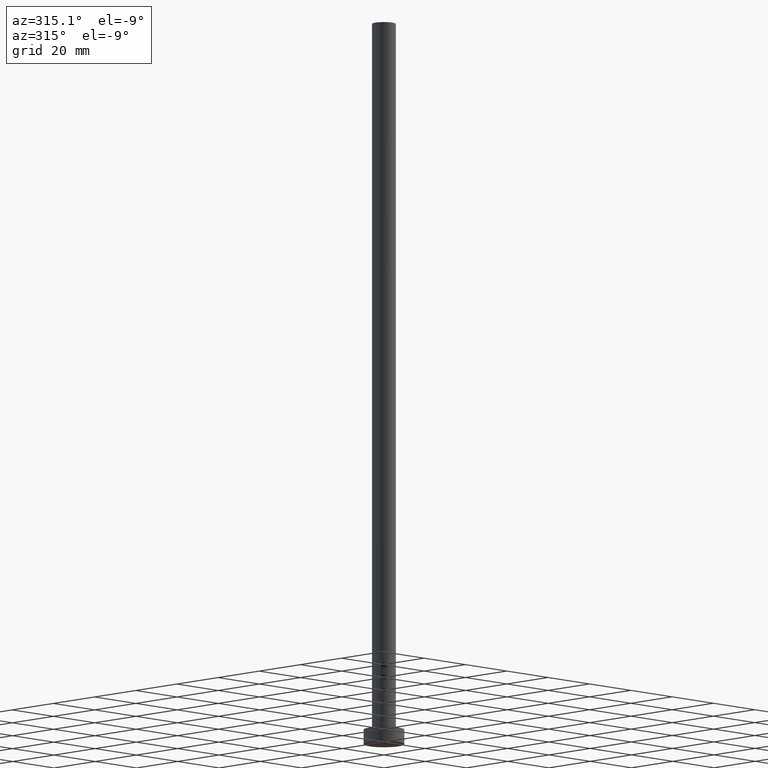
[diagram: clean part render]
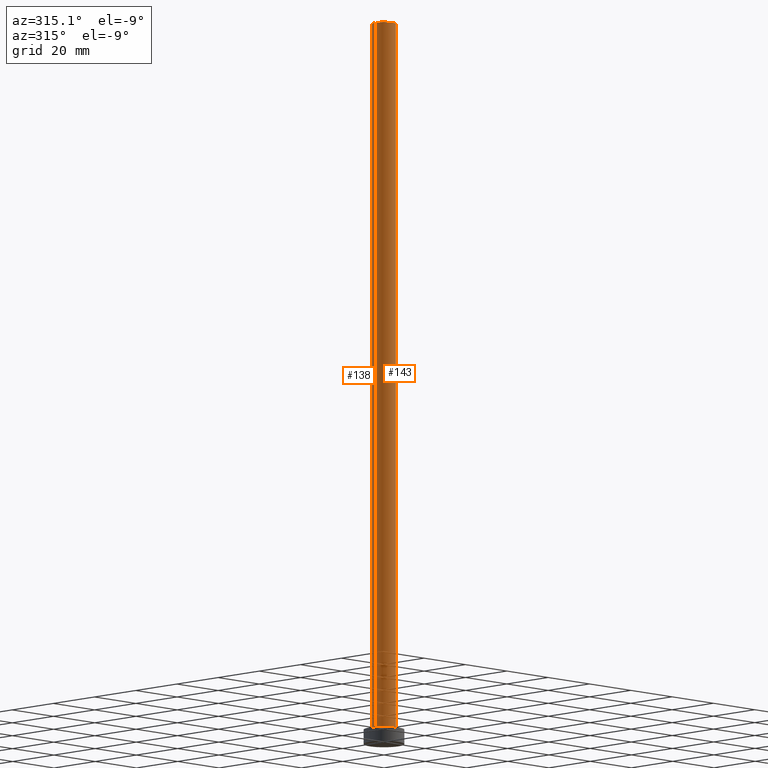
[diagram: same view with one multi-face feature highlighted, each face labeled with its STEP entity id]
A machine part, auxiliary view. The highlighted faces form ONE feature: a constant-radius fillet chain: 2 tangent blend faces with common blend radius 4.1 mm. The faces share edges in the B-rep.
Their STEP definitions:
[1] entity #143 (Cylinder):
#6 = CARTESIAN_POINT ( 'NONE',  ( 0.000000000000000000, 0.000000000000000000, 250.0000000000000000 ) ) ;
#7 = CIRCLE ( 'NONE', #72, 4.099999999999999645 ) ;
#16 = CYLINDRICAL_SURFACE ( 'NONE', #42, 4.099999999999999645 ) ;
#18 = CARTESIAN_POINT ( 'NONE',  ( -4.099999999999999645, 0.000000000000000000, 5.000000000000000000 ) ) ;
#19 = DIRECTION ( 'NONE',  ( 0.000000000000000000, 0.000000000000000000, 1.000000000000000000 ) ) ;
#24 = DIRECTION ( 'NONE',  ( 1.000000000000000000, 0.000000000000000000, 0.000000000000000000 ) ) ;
#27 = EDGE_CURVE ( 'NONE', #234, #160, #115, .T. ) ;
#36 = VERTEX_POINT ( 'NONE', #98 ) ;
#42 = AXIS2_PLACEMENT_3D ( 'NONE', #147, #87, #166 ) ;
#55 = CARTESIAN_POINT ( 'NONE',  ( -4.099999999999999645, 0.000000000000000000, 250.0000000000000000 ) ) ;
#67 = FACE_OUTER_BOUND ( 'NONE', #248, .T. ) ;
#72 = AXIS2_PLACEMENT_3D ( 'NONE', #6, #238, #24 ) ;
#75 = ORIENTED_EDGE ( 'NONE', *, *, #164, .T. ) ;
#77 = ORIENTED_EDGE ( 'NONE', *, *, #112, .F. ) ;
#82 = CARTESIAN_POINT ( 'NONE',  ( -4.099999999999999645, 0.000000000000000000, 250.0000000000000000 ) ) ;
#87 = DIRECTION ( 'NONE',  ( -0.000000000000000000, -0.000000000000000000, -1.000000000000000000 ) ) ;
#91 = LINE ( 'NONE', #252, #120 ) ;
#98 = CARTESIAN_POINT ( 'NONE',  ( 4.099999999999999645, 5.021051876504147385E-16, 250.0000000000000000 ) ) ;
#100 = ORIENTED_EDGE ( 'NONE', *, *, #187, .F. ) ;
#110 = VECTOR ( 'NONE', #121, 1000.000000000000000 ) ;
#112 = EDGE_CURVE ( 'NONE', #244, #36, #7, .T. ) ;
#115 = CIRCLE ( 'NONE', #210, 4.099999999999999645 ) ;
#120 = VECTOR ( 'NONE', #130, 1000.000000000000000 ) ;
#121 = DIRECTION ( 'NONE',  ( -0.000000000000000000, -0.000000000000000000, -1.000000000000000000 ) ) ;
#128 = ORIENTED_EDGE ( 'NONE', *, *, #27, .T. ) ;
#130 = DIRECTION ( 'NONE',  ( -0.000000000000000000, -0.000000000000000000, -1.000000000000000000 ) ) ;
#136 = DIRECTION ( 'NONE',  ( 1.000000000000000000, 0.000000000000000000, 0.000000000000000000 ) ) ;
#143 = ADVANCED_FACE ( 'NONE', ( #67 ), #16, .T. ) ;
#147 = CARTESIAN_POINT ( 'NONE',  ( 0.000000000000000000, 0.000000000000000000, 250.0000000000000000 ) ) ;
#160 = VERTEX_POINT ( 'NONE', #183 ) ;
#164 = EDGE_CURVE ( 'NONE', #244, #234, #186, .T. ) ;
#166 = DIRECTION ( 'NONE',  ( -1.000000000000000000, 0.000000000000000000, 0.000000000000000000 ) ) ;
#180 = CARTESIAN_POINT ( 'NONE',  ( 0.000000000000000000, 0.000000000000000000, 5.000000000000000000 ) ) ;
#183 = CARTESIAN_POINT ( 'NONE',  ( 4.099999999999999645, 5.021051876504147385E-16, 5.000000000000000000 ) ) ;
#186 = LINE ( 'NONE', #82, #110 ) ;
#187 = EDGE_CURVE ( 'NONE', #36, #160, #91, .T. ) ;
#210 = AXIS2_PLACEMENT_3D ( 'NONE', #180, #19, #136 ) ;
#234 = VERTEX_POINT ( 'NONE', #18 ) ;
#238 = DIRECTION ( 'NONE',  ( 0.000000000000000000, 0.000000000000000000, 1.000000000000000000 ) ) ;
#244 = VERTEX_POINT ( 'NONE', #55 ) ;
#248 = EDGE_LOOP ( 'NONE', ( #100, #77, #75, #128 ) ) ;
#252 = CARTESIAN_POINT ( 'NONE',  ( 4.099999999999999645, 5.021051876504147385E-16, 250.0000000000000000 ) ) ;
[2] entity #138 (Cylinder):
#2 = ORIENTED_EDGE ( 'NONE', *, *, #164, .F. ) ;
#12 = DIRECTION ( 'NONE',  ( -1.000000000000000000, 0.000000000000000000, 0.000000000000000000 ) ) ;
#15 = AXIS2_PLACEMENT_3D ( 'NONE', #153, #167, #12 ) ;
#18 = CARTESIAN_POINT ( 'NONE',  ( -4.099999999999999645, 0.000000000000000000, 5.000000000000000000 ) ) ;
#31 = EDGE_CURVE ( 'NONE', #36, #244, #52, .T. ) ;
#36 = VERTEX_POINT ( 'NONE', #98 ) ;
#46 = CIRCLE ( 'NONE', #191, 4.099999999999999645 ) ;
#52 = CIRCLE ( 'NONE', #173, 4.099999999999999645 ) ;
#55 = CARTESIAN_POINT ( 'NONE',  ( -4.099999999999999645, 0.000000000000000000, 250.0000000000000000 ) ) ;
#58 = ORIENTED_EDGE ( 'NONE', *, *, #150, .T. ) ;
#59 = DIRECTION ( 'NONE',  ( 0.000000000000000000, 0.000000000000000000, 1.000000000000000000 ) ) ;
#80 = EDGE_LOOP ( 'NONE', ( #94, #231, #58, #2 ) ) ;
#81 = DIRECTION ( 'NONE',  ( 0.000000000000000000, 0.000000000000000000, 1.000000000000000000 ) ) ;
#82 = CARTESIAN_POINT ( 'NONE',  ( -4.099999999999999645, 0.000000000000000000, 250.0000000000000000 ) ) ;
#91 = LINE ( 'NONE', #252, #120 ) ;
#94 = ORIENTED_EDGE ( 'NONE', *, *, #31, .F. ) ;
#98 = CARTESIAN_POINT ( 'NONE',  ( 4.099999999999999645, 5.021051876504147385E-16, 250.0000000000000000 ) ) ;
#99 = DIRECTION ( 'NONE',  ( 1.000000000000000000, 0.000000000000000000, 0.000000000000000000 ) ) ;
#109 = CARTESIAN_POINT ( 'NONE',  ( 0.000000000000000000, 0.000000000000000000, 5.000000000000000000 ) ) ;
#110 = VECTOR ( 'NONE', #121, 1000.000000000000000 ) ;
#120 = VECTOR ( 'NONE', #130, 1000.000000000000000 ) ;
#121 = DIRECTION ( 'NONE',  ( -0.000000000000000000, -0.000000000000000000, -1.000000000000000000 ) ) ;
#127 = CYLINDRICAL_SURFACE ( 'NONE', #15, 4.099999999999999645 ) ;
#130 = DIRECTION ( 'NONE',  ( -0.000000000000000000, -0.000000000000000000, -1.000000000000000000 ) ) ;
#138 = ADVANCED_FACE ( 'NONE', ( #172 ), #127, .T. ) ;
#150 = EDGE_CURVE ( 'NONE', #160, #234, #46, .T. ) ;
#153 = CARTESIAN_POINT ( 'NONE',  ( 0.000000000000000000, 0.000000000000000000, 250.0000000000000000 ) ) ;
#157 = CARTESIAN_POINT ( 'NONE',  ( 0.000000000000000000, 0.000000000000000000, 250.0000000000000000 ) ) ;
#160 = VERTEX_POINT ( 'NONE', #183 ) ;
#161 = DIRECTION ( 'NONE',  ( 1.000000000000000000, 0.000000000000000000, 0.000000000000000000 ) ) ;
#164 = EDGE_CURVE ( 'NONE', #244, #234, #186, .T. ) ;
#167 = DIRECTION ( 'NONE',  ( -0.000000000000000000, -0.000000000000000000, -1.000000000000000000 ) ) ;
#172 = FACE_OUTER_BOUND ( 'NONE', #80, .T. ) ;
#173 = AXIS2_PLACEMENT_3D ( 'NONE', #157, #81, #161 ) ;
#183 = CARTESIAN_POINT ( 'NONE',  ( 4.099999999999999645, 5.021051876504147385E-16, 5.000000000000000000 ) ) ;
#186 = LINE ( 'NONE', #82, #110 ) ;
#187 = EDGE_CURVE ( 'NONE', #36, #160, #91, .T. ) ;
#191 = AXIS2_PLACEMENT_3D ( 'NONE', #109, #59, #99 ) ;
#231 = ORIENTED_EDGE ( 'NONE', *, *, #187, .T. ) ;
#234 = VERTEX_POINT ( 'NONE', #18 ) ;
#244 = VERTEX_POINT ( 'NONE', #55 ) ;
#252 = CARTESIAN_POINT ( 'NONE',  ( 4.099999999999999645, 5.021051876504147385E-16, 250.0000000000000000 ) ) ;